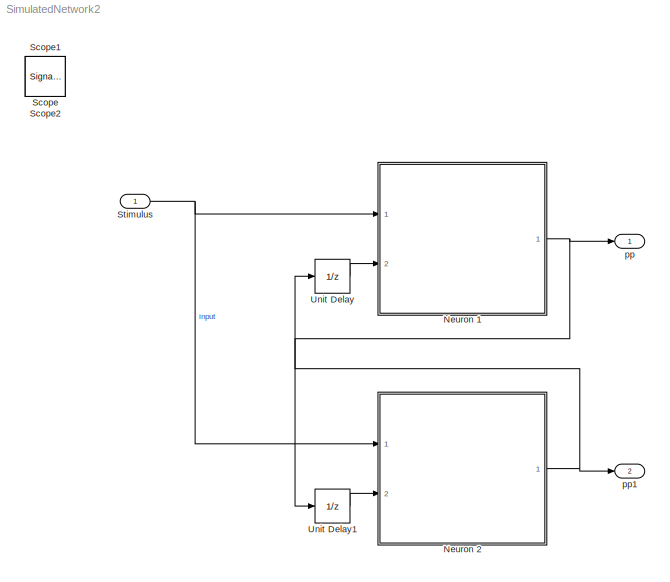
MODEL SimulatedNetwork2
KIND model
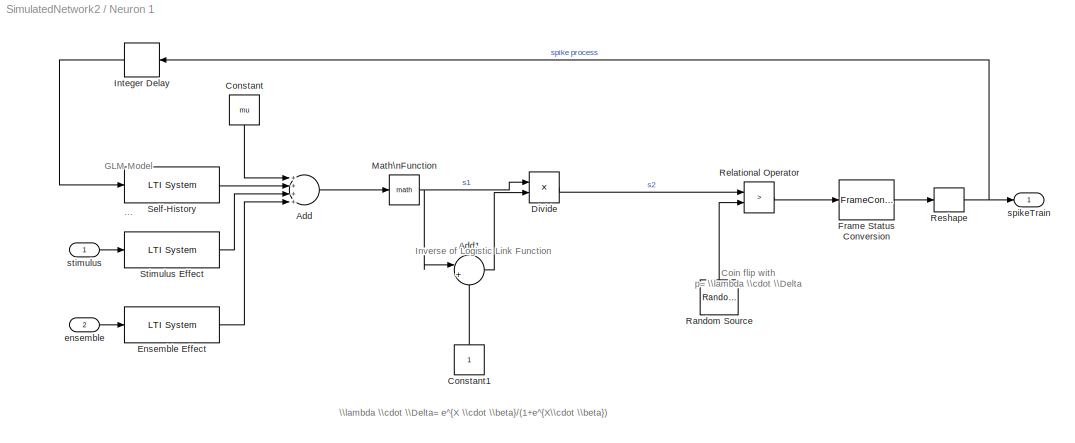
BLOCK [SubSystem] Neuron 1
  FunctionWithSeparateData = off
  MaskHideContents = off
  MinAlgLoopOccurrences = off
  Opaque = off
  Ports = [2, 1]
  PropExecContextOutsideSubsystem = off
  RTWSystemCode = Auto
  RequestExecContextInheritance = off
  SID = 45
BLOCK [Sum] Neuron 1/Add
  InputSameDT = off
  Inputs = ++++
  OutDataTypeStr = Inherit: Inherit via internal rule
  Ports = [4, 1]
  SID = 3
  SaturateOnIntegerOverflow = off
BLOCK [Sum] Neuron 1/Add1
  IconShape = round
  InputSameDT = off
  Inputs = |++
  OutDataTypeStr = Inherit: Inherit via internal rule
  Ports = [2, 1]
  SID = 32
  SaturateOnIntegerOverflow = off
BLOCK [Constant] Neuron 1/Constant
  SID = 1
  Value = mu
BLOCK [Constant] Neuron 1/Constant1
  SID = 33
BLOCK [Product] Neuron 1/Divide
  InputSameDT = off
  Inputs = */
  OutDataTypeStr = Inherit: Inherit via internal rule
  Ports = [2, 1]
  RndMeth = Floor
  SID = 31
  SaturateOnIntegerOverflow = off
BLOCK [Reference] Neuron 1/Ensemble Effect  REF=cstblocks/LTI System
  IC = []
  Ports = [1, 1]
  SID = 43
  SourceBlock = cstblocks/LTI System
  SourceType = LTI Block
  sys = E
BLOCK [FrameConversion] Neuron 1/Frame Status Conversion
  OutFrame = Sample-based
  Ports = [1, 1]
  SID = 11
BLOCK [Delay] Neuron 1/Integer Delay
  DelayLength = 1
  InputPortMap = u0
  Ports = [1, 1]
  SID = 22
  UserData = DataTag0
  UserDataPersistent = on
BLOCK [Math] Neuron 1/Math\nFunction
  Ports = [1, 1]
  SID = 8
BLOCK [Reference] Neuron 1/Random Source  REF=dspsrcs4/Random\nSource
  CltLength = 12
  DataType = Double
  Diagnostics = AllowInheritedTsInSrc
  IsInherit = on
  MaxVal = 1
  MeanVal = 0
  MinVal = 0
  NormMethod = Ziggurat
  OutComplex = Real
  Ports = [0, 1]
  RepMode = Not repeatable
  SID = 12
  SampFrame = dsp_sampFrame
  SampMode = Continuous
  SampTime = Ts
  SourceBlock = dspsrcs4/Random\nSource
  SourceType = Random Source
  SrcType = Uniform
  UserData = DataTag1
  UserDataPersistent = on
  VarVal = 1
  rawSeed = seed
BLOCK [RelationalOperator] Neuron 1/Relational Operator
  Operator = >
  OutDataTypeStr = float('double')
  Ports = [2, 1]
  SID = 13
BLOCK [Reshape] Neuron 1/Reshape
  OutputDimensions = [sampPerFrame,max(length(P),length(seed))]
  Ports = [1, 1]
  SID = 14
BLOCK [Reference] Neuron 1/Self-History  REF=cstblocks/LTI System
  IC = []
  Ports = [1, 1]
  SID = 5
  SourceBlock = cstblocks/LTI System
  SourceType = LTI Block
  sys = H
BLOCK [Reference] Neuron 1/Stimulus Effect  REF=cstblocks/LTI System
  IC = []
  Ports = [1, 1]
  SID = 6
  SourceBlock = cstblocks/LTI System
  SourceType = LTI Block
  sys = S
BLOCK [Inport] Neuron 1/ensemble
  IconDisplay = Port number
  Port = 2
  SID = 48
BLOCK [Outport] Neuron 1/spikeTrain
  IconDisplay = Port number
  SID = 46
BLOCK [Inport] Neuron 1/stimulus
  IconDisplay = Port number
  SID = 47
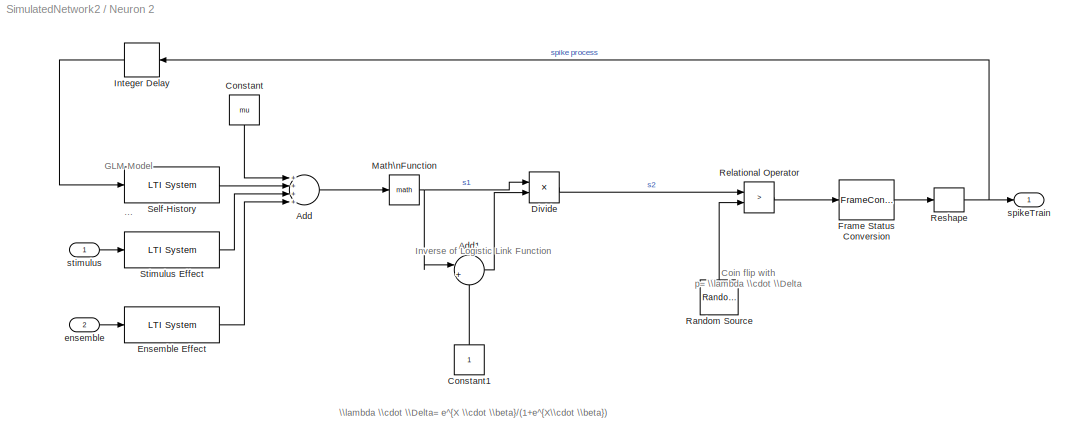
BLOCK [SubSystem] Neuron 2
  FunctionWithSeparateData = off
  MaskHideContents = off
  MinAlgLoopOccurrences = off
  Opaque = off
  Ports = [2, 1]
  PropExecContextOutsideSubsystem = off
  RTWSystemCode = Auto
  RequestExecContextInheritance = off
  SID = 68
BLOCK [Sum] Neuron 2/Add
  InputSameDT = off
  Inputs = ++++
  OutDataTypeStr = Inherit: Inherit via internal rule
  Ports = [4, 1]
  SID = 71
  SaturateOnIntegerOverflow = off
BLOCK [Sum] Neuron 2/Add1
  IconShape = round
  InputSameDT = off
  Inputs = |++
  OutDataTypeStr = Inherit: Inherit via internal rule
  Ports = [2, 1]
  SID = 72
  SaturateOnIntegerOverflow = off
BLOCK [Constant] Neuron 2/Constant
  SID = 73
  Value = mu
BLOCK [Constant] Neuron 2/Constant1
  SID = 74
BLOCK [Product] Neuron 2/Divide
  InputSameDT = off
  Inputs = */
  OutDataTypeStr = Inherit: Inherit via internal rule
  Ports = [2, 1]
  RndMeth = Floor
  SID = 75
  SaturateOnIntegerOverflow = off
BLOCK [Reference] Neuron 2/Ensemble Effect  REF=cstblocks/LTI System
  IC = []
  Ports = [1, 1]
  SID = 76
  SourceBlock = cstblocks/LTI System
  SourceType = LTI Block
  sys = E
BLOCK [FrameConversion] Neuron 2/Frame Status Conversion
  OutFrame = Sample-based
  Ports = [1, 1]
  SID = 77
BLOCK [Delay] Neuron 2/Integer Delay
  DelayLength = 1
  InputPortMap = u0
  Ports = [1, 1]
  SID = 78
  UserData = DataTag2
  UserDataPersistent = on
BLOCK [Math] Neuron 2/Math\nFunction
  Ports = [1, 1]
  SID = 79
BLOCK [Reference] Neuron 2/Random Source  REF=dspsrcs4/Random\nSource
  CltLength = 12
  DataType = Double
  Diagnostics = AllowInheritedTsInSrc
  IsInherit = on
  MaxVal = 1
  MeanVal = 0
  MinVal = 0
  NormMethod = Ziggurat
  OutComplex = Real
  Ports = [0, 1]
  RepMode = Not repeatable
  SID = 80
  SampFrame = dsp_sampFrame
  SampMode = Continuous
  SampTime = Ts
  SourceBlock = dspsrcs4/Random\nSource
  SourceType = Random Source
  SrcType = Uniform
  UserData = DataTag3
  UserDataPersistent = on
  VarVal = 1
  rawSeed = seed
BLOCK [RelationalOperator] Neuron 2/Relational Operator
  Operator = >
  OutDataTypeStr = float('double')
  Ports = [2, 1]
  SID = 81
BLOCK [Reshape] Neuron 2/Reshape
  OutputDimensions = [sampPerFrame,max(length(P),length(seed))]
  Ports = [1, 1]
  SID = 82
BLOCK [Reference] Neuron 2/Self-History  REF=cstblocks/LTI System
  IC = []
  Ports = [1, 1]
  SID = 83
  SourceBlock = cstblocks/LTI System
  SourceType = LTI Block
  sys = H
BLOCK [Reference] Neuron 2/Stimulus Effect  REF=cstblocks/LTI System
  IC = []
  Ports = [1, 1]
  SID = 84
  SourceBlock = cstblocks/LTI System
  SourceType = LTI Block
  sys = S
BLOCK [Inport] Neuron 2/ensemble
  IconDisplay = Port number
  Port = 2
  SID = 70
BLOCK [Outport] Neuron 2/spikeTrain
  IconDisplay = Port number
  SID = 85
BLOCK [Inport] Neuron 2/stimulus
  IconDisplay = Port number
  SID = 69
BLOCK [SignalViewerScope] Scope
  IOType = viewer
  MaxDataPoints = 7500
  NumInputPorts = 1
  Ports = []
  RefreshTime = 0.035000
  SID = 28
  ShowDataMarkers = off
  ShowLegends = off
BLOCK [SignalViewerScope] Scope1
  IOType = viewer
  MaxDataPoints = 7500
  NumInputPorts = 1
  Ports = []
  RefreshTime = 0.035000
  SID = 29
  SaveName = ScopeData1
  ShowDataMarkers = off
  ShowLegends = off
BLOCK [SignalViewerScope] Scope2
  IOType = viewer
  MaxDataPoints = 7500
  NumInputPorts = 1
  Ports = []
  RefreshTime = 0.035000
  SID = 38
  SaveName = ScopeData2
  ShowDataMarkers = off
  ShowLegends = off
BLOCK [Inport] Stimulus
  IconDisplay = Port number
  SID = 37
BLOCK [UnitDelay] Unit Delay
  InputProcessing = Elements as channels (sample based)
  SID = 88
  SampleTime = -1
BLOCK [UnitDelay] Unit Delay1
  InputProcessing = Elements as channels (sample based)
  SID = 87
  SampleTime = -1
BLOCK [Outport] pp
  IconDisplay = Port number
  SID = 26
BLOCK [Outport] pp1
  IconDisplay = Port number
  Port = 2
  SID = 67
ANNOTATION Neuron 1: Coin flip with\np= \\lambda \\cdot <path>
ANNOTATION Neuron 1: GLM Model \n\n \n\n\n\n\n\n\n\n\n\n\n\n\n\n\n\n\n.
ANNOTATION Neuron 1: Inverse of Logistic Link Function\n \n\n\n\n\n\n\n\n\n\n.
ANNOTATION Neuron 1: \\lambda \\cdot \\Delta= e^{X \\cdot \\beta}/(1+e^{X\\cdot \\beta})
ANNOTATION Neuron 2: Coin flip with\np= \\lambda \\cdot <path>
ANNOTATION Neuron 2: GLM Model \n\n \n\n\n\n\n\n\n\n\n\n\n\n\n\n\n\n\n.
ANNOTATION Neuron 2: Inverse of Logistic Link Function\n \n\n\n\n\n\n\n\n\n\n.
ANNOTATION Neuron 2: \\lambda \\cdot \\Delta= e^{X \\cdot \\beta}/(1+e^{X\\cdot \\beta})
LINE Neuron 1/Add1:1 -> Neuron 1/Divide:2
LINE Neuron 1/Add:1 -> Neuron 1/Math\nFunction:1
LINE Neuron 1/Constant1:1 -> Neuron 1/Add1:2
LINE Neuron 1/Constant:1 -> Neuron 1/Add:1
LINE Neuron 1/Divide:1 -> Neuron 1/Relational Operator:1
LINE Neuron 1/Ensemble Effect:1 -> Neuron 1/Add:4
LINE Neuron 1/Frame Status Conversion:1 -> Neuron 1/Reshape:1
LINE Neuron 1/Integer Delay:1 -> Neuron 1/Self-History:1
NET Neuron 1/Math\nFunction:1 -> Neuron 1/Add1:1, Neuron 1/Divide:1
LINE Neuron 1/Random Source:1 -> Neuron 1/Relational Operator:2
LINE Neuron 1/Relational Operator:1 -> Neuron 1/Frame Status Conversion:1
NET Neuron 1/Reshape:1 -> Neuron 1/Integer Delay:1, Neuron 1/spikeTrain:1
LINE Neuron 1/Self-History:1 -> Neuron 1/Add:2
LINE Neuron 1/Stimulus Effect:1 -> Neuron 1/Add:3
LINE Neuron 1/ensemble:1 -> Neuron 1/Ensemble Effect:1
LINE Neuron 1/stimulus:1 -> Neuron 1/Stimulus Effect:1
NET Neuron 1:1 -> Unit Delay1:1, pp:1
LINE Neuron 2/Add1:1 -> Neuron 2/Divide:2
LINE Neuron 2/Add:1 -> Neuron 2/Math\nFunction:1
LINE Neuron 2/Constant1:1 -> Neuron 2/Add1:2
LINE Neuron 2/Constant:1 -> Neuron 2/Add:1
LINE Neuron 2/Divide:1 -> Neuron 2/Relational Operator:1
LINE Neuron 2/Ensemble Effect:1 -> Neuron 2/Add:4
LINE Neuron 2/Frame Status Conversion:1 -> Neuron 2/Reshape:1
LINE Neuron 2/Integer Delay:1 -> Neuron 2/Self-History:1
NET Neuron 2/Math\nFunction:1 -> Neuron 2/Add1:1, Neuron 2/Divide:1
LINE Neuron 2/Random Source:1 -> Neuron 2/Relational Operator:2
LINE Neuron 2/Relational Operator:1 -> Neuron 2/Frame Status Conversion:1
NET Neuron 2/Reshape:1 -> Neuron 2/Integer Delay:1, Neuron 2/spikeTrain:1
LINE Neuron 2/Self-History:1 -> Neuron 2/Add:2
LINE Neuron 2/Stimulus Effect:1 -> Neuron 2/Add:3
LINE Neuron 2/ensemble:1 -> Neuron 2/Ensemble Effect:1
LINE Neuron 2/stimulus:1 -> Neuron 2/Stimulus Effect:1
NET Neuron 2:1 -> Unit Delay:1, pp1:1
NET Stimulus:1 -> Neuron 1:1, Neuron 2:1
LINE Unit Delay1:1 -> Neuron 2:2
LINE Unit Delay:1 -> Neuron 1:2
note: NET lines group one-source signal fan-out (src -> all destinations, sorted); 1:1 wires keep LINE
note: 2 file-system paths scrubbed to <path> (not preserved elsewhere — flat text is the only slx artifact)
